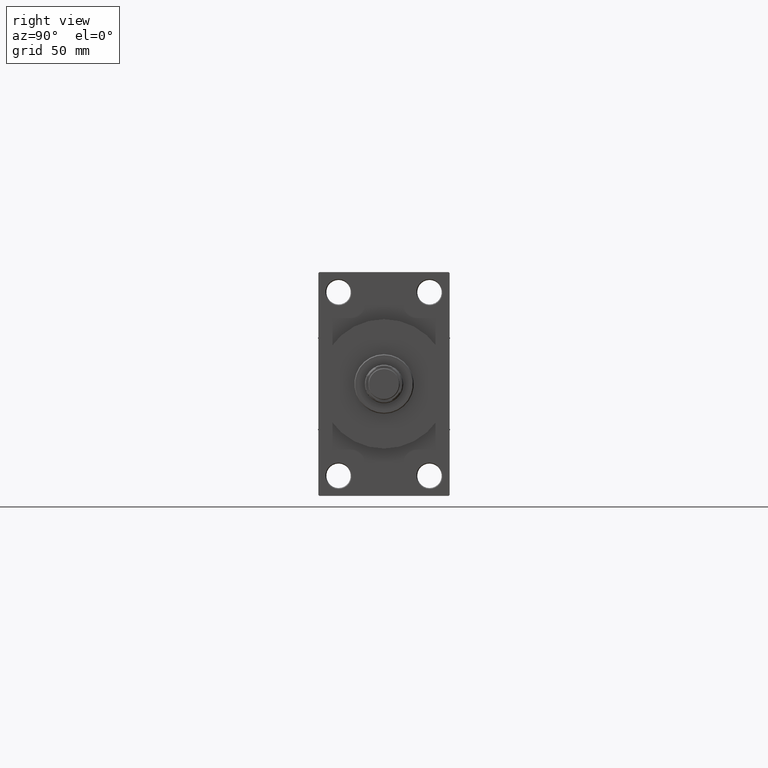
[diagram: clean part render]
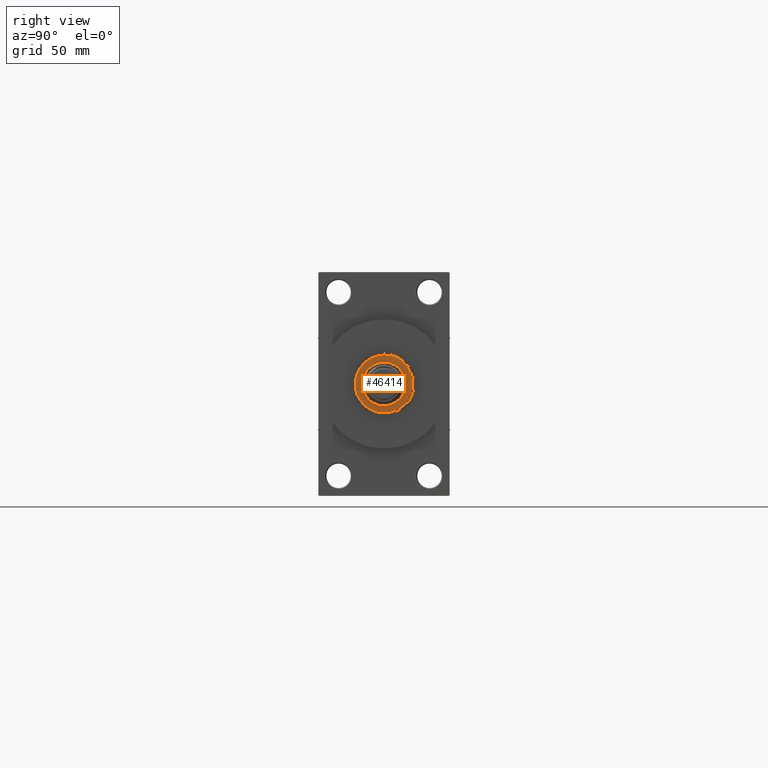
[diagram: same view with one face highlighted and labeled with its STEP entity id]
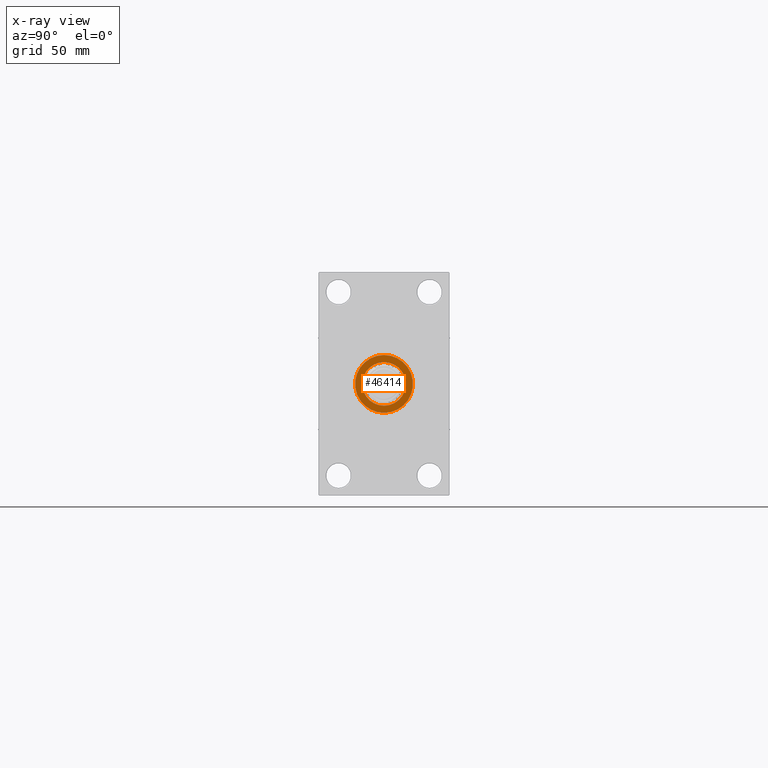
[diagram: x-ray of the same camera — body ghosted, the highlighted face saturated]
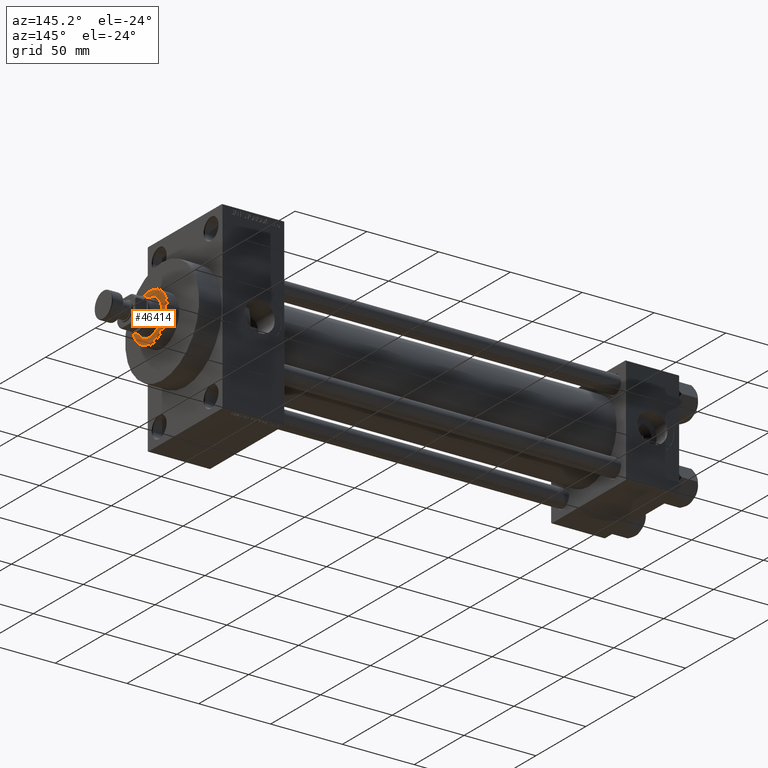
[diagram: same view with one face highlighted and labeled with its STEP entity id]
A machine part, right view. The second image highlights one B-rep face of the part: STEP entity #46414.
The next image is the same camera in x-ray: the body ghosted, the highlighted face saturated — about 0% of this face is hidden behind the body in this view.
A second angle (auxiliary view) of the same face is appended — the face is thin or edge-on in the first view.
In plain terms, the highlighted planar face has unit normal (1, -0, -0).
Its self-contained STEP definition (entity closure, byte-faithful):
#197 = CIRCLE ( 'NONE', #26351, 16.50000000000000000 ) ;
#2070 = CIRCLE ( 'NONE', #9794, 12.50000000000000000 ) ;
#2367 = CARTESIAN_POINT ( 'NONE',  ( 0.000000000000000000, 0.000000000000000000, 52.25999999999999801 ) ) ;
#8313 = AXIS2_PLACEMENT_3D ( 'NONE', #9296, #24487, #12927 ) ;
#8354 = VERTEX_POINT ( 'NONE', #8719 ) ;
#8719 = CARTESIAN_POINT ( 'NONE',  ( -16.50000000000000000, 0.000000000000000000, 52.25999999999999801 ) ) ;
#9296 = CARTESIAN_POINT ( 'NONE',  ( 0.000000000000000000, 0.000000000000000000, 52.25999999999999801 ) ) ;
#9794 = AXIS2_PLACEMENT_3D ( 'NONE', #18382, #36930, #28732 ) ;
#10332 = DIRECTION ( 'NONE',  ( 1.000000000000000000, 0.000000000000000000, 0.000000000000000000 ) ) ;
#12243 = DIRECTION ( 'NONE',  ( 1.000000000000000000, 0.000000000000000000, 0.000000000000000000 ) ) ;
#12927 = DIRECTION ( 'NONE',  ( 1.000000000000000000, 0.000000000000000000, -0.000000000000000000 ) ) ;
#13693 = CARTESIAN_POINT ( 'NONE',  ( 16.50000000000000000, 2.051283388571816887E-15, 52.25999999999999801 ) ) ;
#13964 = ORIENTED_EDGE ( 'NONE', *, *, #18246, .F. ) ;
#17513 = CIRCLE ( 'NONE', #32859, 16.50000000000000000 ) ;
#18246 = EDGE_CURVE ( 'NONE', #21343, #28058, #19315, .T. ) ;
#18382 = CARTESIAN_POINT ( 'NONE',  ( 0.000000000000000000, 0.000000000000000000, 52.25999999999999801 ) ) ;
#18483 = CARTESIAN_POINT ( 'NONE',  ( 0.000000000000000000, 0.000000000000000000, 52.25999999999999801 ) ) ;
#19015 = CARTESIAN_POINT ( 'NONE',  ( 0.000000000000000000, 0.000000000000000000, 52.25999999999999801 ) ) ;
#19315 = CIRCLE ( 'NONE', #36258, 12.50000000000000000 ) ;
#21343 = VERTEX_POINT ( 'NONE', #36194 ) ;
#22367 = EDGE_CURVE ( 'NONE', #43514, #8354, #197, .T. ) ;
#24487 = DIRECTION ( 'NONE',  ( 0.000000000000000000, 0.000000000000000000, 1.000000000000000000 ) ) ;
#24734 = FACE_OUTER_BOUND ( 'NONE', #45955, .T. ) ;
#26351 = AXIS2_PLACEMENT_3D ( 'NONE', #19015, #30787, #12243 ) ;
#28058 = VERTEX_POINT ( 'NONE', #34772 ) ;
#28648 = DIRECTION ( 'NONE',  ( 0.000000000000000000, 0.000000000000000000, 1.000000000000000000 ) ) ;
#28732 = DIRECTION ( 'NONE',  ( 1.000000000000000000, 0.000000000000000000, 0.000000000000000000 ) ) ;
#29539 = DIRECTION ( 'NONE',  ( 0.000000000000000000, 0.000000000000000000, 1.000000000000000000 ) ) ;
#30787 = DIRECTION ( 'NONE',  ( 0.000000000000000000, 0.000000000000000000, 1.000000000000000000 ) ) ;
#31814 = ORIENTED_EDGE ( 'NONE', *, *, #42491, .T. ) ;
#32859 = AXIS2_PLACEMENT_3D ( 'NONE', #2367, #28648, #10332 ) ;
#33877 = DIRECTION ( 'NONE',  ( 1.000000000000000000, 0.000000000000000000, 0.000000000000000000 ) ) ;
#34772 = CARTESIAN_POINT ( 'NONE',  ( 12.50000000000000000, 0.000000000000000000, 52.25999999999999801 ) ) ;
#36194 = CARTESIAN_POINT ( 'NONE',  ( -12.50000000000000000, 1.530808498934191521E-15, 52.25999999999999801 ) ) ;
#36258 = AXIS2_PLACEMENT_3D ( 'NONE', #18483, #29539, #33877 ) ;
#36930 = DIRECTION ( 'NONE',  ( 0.000000000000000000, 0.000000000000000000, 1.000000000000000000 ) ) ;
#41643 = ORIENTED_EDGE ( 'NONE', *, *, #22367, .T. ) ;
#42089 = PLANE ( 'NONE',  #8313 ) ;
#42491 = EDGE_CURVE ( 'NONE', #8354, #43514, #17513, .T. ) ;
#42958 = EDGE_LOOP ( 'NONE', ( #44557, #13964 ) ) ;
#43514 = VERTEX_POINT ( 'NONE', #13693 ) ;
#44046 = EDGE_CURVE ( 'NONE', #28058, #21343, #2070, .T. ) ;
#44557 = ORIENTED_EDGE ( 'NONE', *, *, #44046, .F. ) ;
#45928 = FACE_BOUND ( 'NONE', #42958, .T. ) ;
#45955 = EDGE_LOOP ( 'NONE', ( #31814, #41643 ) ) ;
#46414 = ADVANCED_FACE ( 'NONE', ( #45928, #24734 ), #42089, .T. ) ;